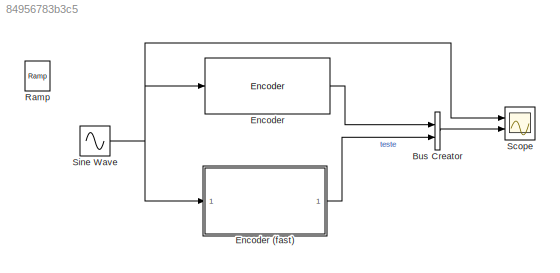
MODEL slx_84956783b3c5
KIND model
BLOCK [BusCreator] Bus Creator
  DisplayOption = bar
  Inputs = 2
  Ports = [2, 1]
BLOCK [Reference] Encoder  REF=Encoder/Encoder
  Nr = 3000
  Ports = [1, 1]
  SourceBlock = Encoder/Encoder
  SourceType = Encoder de quadratura
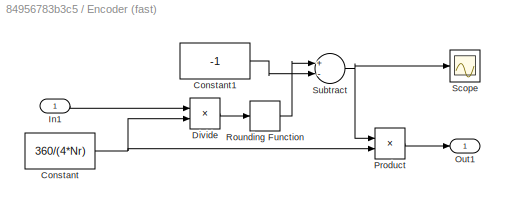
BLOCK [SubSystem] Encoder (fast)
  FunctionWithSeparateData = off
  MaskHideContents = off
  MinAlgLoopOccurrences = off
  Opaque = off
  Ports = [1, 1]
  PropExecContextOutsideSubsystem = off
  RTWSystemCode = Auto
  RequestExecContextInheritance = off
BLOCK [Constant] Encoder (fast)/Constant
  Value = 360/(4*Nr)
BLOCK [Constant] Encoder (fast)/Constant1
  Value = -1
BLOCK [Product] Encoder (fast)/Divide
  InputSameDT = off
  Inputs = */
  OutDataTypeStr = Inherit: Inherit via internal rule
  Ports = [2, 1]
  RndMeth = Floor
  SaturateOnIntegerOverflow = off
BLOCK [Inport] Encoder (fast)/In1
  IconDisplay = Port number
BLOCK [Outport] Encoder (fast)/Out1
  IconDisplay = Port number
BLOCK [Product] Encoder (fast)/Product
  InputSameDT = off
  OutDataTypeStr = Inherit: Inherit via internal rule
  Ports = [2, 1]
  SaturateOnIntegerOverflow = off
BLOCK [Rounding] Encoder (fast)/Rounding Function
BLOCK [Scope] Encoder (fast)/Scope
  DataFormat = StructureWithTime
  Floating = off
  NumInputPorts = 1
  Ports = [1]
  SampleTime = 0
  SaveName = ScopeData1
  ShowLegends = off
BLOCK [Sum] Encoder (fast)/Subtract
  InputSameDT = off
  Inputs = +-
  OutDataTypeStr = Inherit: Inherit via internal rule
  Ports = [2, 1]
  SaturateOnIntegerOverflow = off
BLOCK [Reference] Ramp  REF=simulink/Sources/Ramp
  Ports = [0, 1]
  SourceBlock = simulink/Sources/Ramp
  SourceType = Ramp
  VectorParams1D = on
  X0 = 0
  slope = 100
  start = 0
BLOCK [Scope] Scope
  DataFormat = StructureWithTime
  Floating = off
  LimitDataPoints = off
  NumInputPorts = 2
  Ports = [2]
  SampleTime = 0
  ShowLegends = on
  YMax = 1000~1100
  YMin = -1000~-1000
BLOCK [Sin] Sine Wave
  Amplitude = 01000
  Ports = [0, 1]
  SampleTime = 0
LINE Bus Creator:1 -> Scope:2
LINE Encoder (fast)/Constant1:1 -> Encoder (fast)/Subtract:2
NET Encoder (fast)/Constant:1 -> Encoder (fast)/Divide:2, Encoder (fast)/Product:2
LINE Encoder (fast)/Divide:1 -> Encoder (fast)/Rounding Function:1
LINE Encoder (fast)/In1:1 -> Encoder (fast)/Divide:1
LINE Encoder (fast)/Product:1 -> Encoder (fast)/Out1:1
LINE Encoder (fast)/Rounding Function:1 -> Encoder (fast)/Subtract:1
NET Encoder (fast)/Subtract:1 -> Encoder (fast)/Product:1, Encoder (fast)/Scope:1
LINE Encoder (fast):1 -> Bus Creator:2
LINE Encoder:1 -> Bus Creator:1
NET Sine Wave:1 -> Encoder (fast):1, Encoder:1, Scope:1
note: NET lines group one-source signal fan-out (src -> all destinations, sorted); 1:1 wires keep LINE
